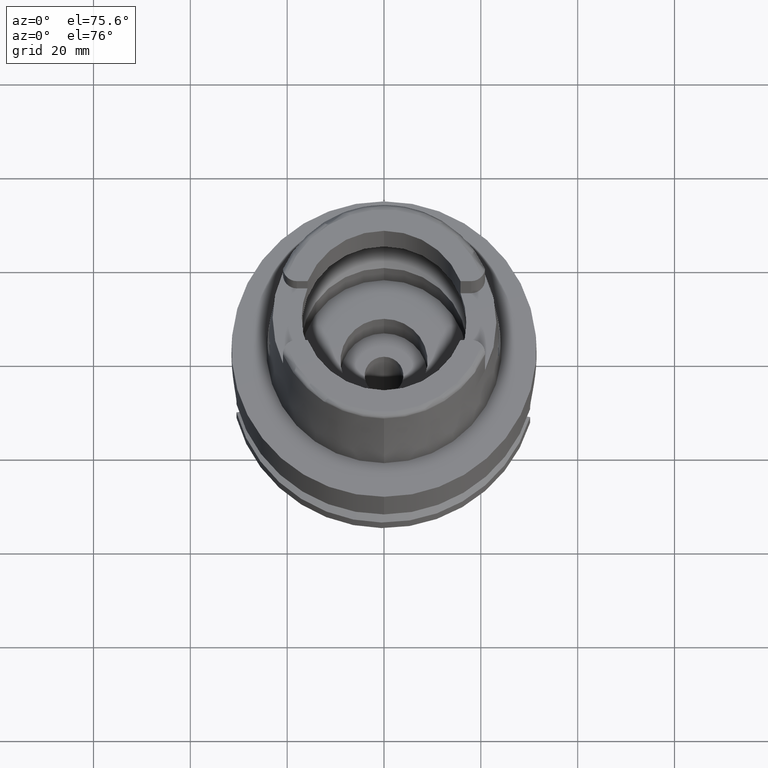
[diagram: clean part render]
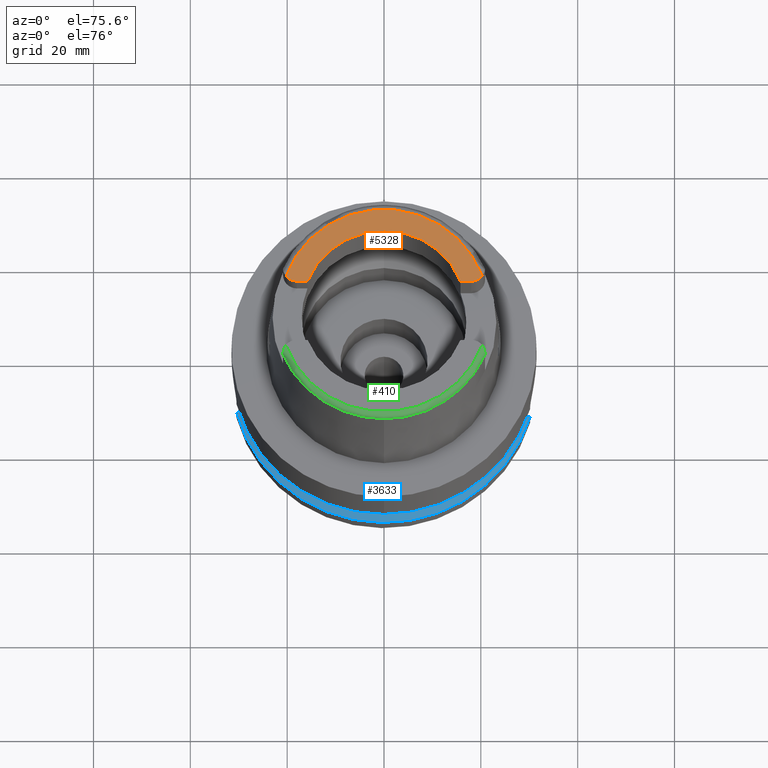
[diagram: same view with three faces highlighted in distinct colors, each labeled with its STEP entity id]
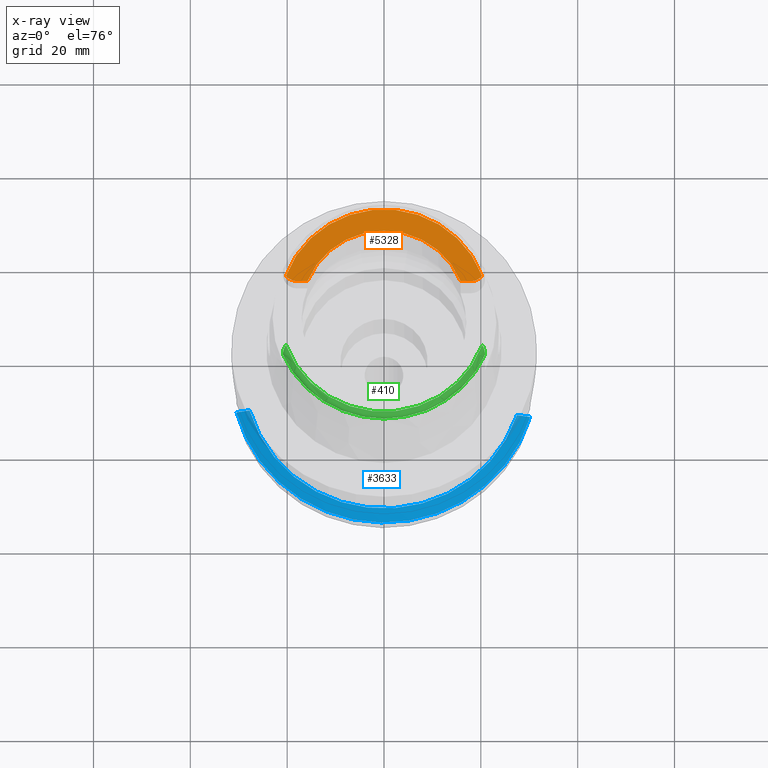
[diagram: x-ray of the same camera — body ghosted, the three highlighted faces saturated]
A machine part, auxiliary view with three faces highlighted in distinct colors.
The next image is the same camera in x-ray (body ghosted, the three faces saturated) — at least one of them is partly hidden behind the body in this view.
Their STEP definitions:

[orange] entity #5328 — the highlighted planar face has unit normal (0, 0, -1).
#3 = VERTEX_POINT ( 'NONE', #1790 ) ;
#40 = VERTEX_POINT ( 'NONE', #3411 ) ;
#74 = ORIENTED_EDGE ( 'NONE', *, *, #4457, .F. ) ;
#148 = ORIENTED_EDGE ( 'NONE', *, *, #4981, .F. ) ;
#178 = VERTEX_POINT ( 'NONE', #322 ) ;
#192 = DIRECTION ( 'NONE',  ( 0.0000000000000000000, -1.000000000000000000, 0.0000000000000000000 ) ) ;
#215 = EDGE_LOOP ( 'NONE', ( #4367, #74, #780, #148, #2707, #4323, #1389 ) ) ;
#253 = DIRECTION ( 'NONE',  ( 1.000000000000000000, 8.644330667353000255E-14, 0.0000000000000000000 ) ) ;
#300 = DIRECTION ( 'NONE',  ( 0.0000000000000000000, 0.0000000000000000000, -1.000000000000000000 ) ) ;
#322 = CARTESIAN_POINT ( 'NONE',  ( 15.80149043602999903, 6.270000000000000462, 32.00000000000000000 ) ) ;
#590 = EDGE_CURVE ( 'NONE', #2093, #2229, #2830, .T. ) ;
#763 = EDGE_CURVE ( 'NONE', #2117, #2229, #1498, .T. ) ;
#777 = VECTOR ( 'NONE', #253, 1000.000000000000000 ) ;
#780 = ORIENTED_EDGE ( 'NONE', *, *, #3675, .T. ) ;
#905 = DIRECTION ( 'NONE',  ( 0.7912216523763718756, -0.6115294733786784676, 0.0000000000000000000 ) ) ;
#1033 = AXIS2_PLACEMENT_3D ( 'NONE', #3031, #4747, #905 ) ;
#1305 = CIRCLE ( 'NONE', #1033, 2.880000000000003446 ) ;
#1326 = DIRECTION ( 'NONE',  ( 0.0009289215035771249650, 0.9999995685523269673, 0.0000000000000000000 ) ) ;
#1389 = ORIENTED_EDGE ( 'NONE', *, *, #763, .T. ) ;
#1498 = LINE ( 'NONE', #2778, #777 ) ;
#1517 = DIRECTION ( 'NONE',  ( 1.000000000000000000, -8.806665515566000284E-14, 0.0000000000000000000 ) ) ;
#1572 = CARTESIAN_POINT ( 'NONE',  ( 15.80149043602999903, 6.270000000000000462, 32.00000000000000000 ) ) ;
#1790 = CARTESIAN_POINT ( 'NONE',  ( 17.98999999999999844, 6.270000000000000462, 32.00000000000000000 ) ) ;
#2025 = AXIS2_PLACEMENT_3D ( 'NONE', #2552, #5207, #2979 ) ;
#2093 = VERTEX_POINT ( 'NONE', #3420 ) ;
#2117 = VERTEX_POINT ( 'NONE', #3029 ) ;
#2191 = DIRECTION ( 'NONE',  ( 0.0000000000000000000, 0.0000000000000000000, -1.000000000000000000 ) ) ;
#2229 = VERTEX_POINT ( 'NONE', #2251 ) ;
#2232 = AXIS2_PLACEMENT_3D ( 'NONE', #5430, #3680, #192 ) ;
#2233 = EDGE_CURVE ( 'NONE', #40, #3376, #5194, .T. ) ;
#2251 = CARTESIAN_POINT ( 'NONE',  ( -15.80149043602999903, 6.270000000000000462, 32.00000000000000000 ) ) ;
#2349 = FACE_OUTER_BOUND ( 'NONE', #215, .T. ) ;
#2401 = EDGE_CURVE ( 'NONE', #2117, #40, #3212, .T. ) ;
#2500 = CARTESIAN_POINT ( 'NONE',  ( 20.26871835884000106, 7.388795116668999796, 32.00000000000000000 ) ) ;
#2552 = CARTESIAN_POINT ( 'NONE',  ( 0.0000000000000000000, 0.0000000000000000000, 32.00000000000000000 ) ) ;
#2634 = AXIS2_PLACEMENT_3D ( 'NONE', #4843, #3072, #3491 ) ;
#2707 = ORIENTED_EDGE ( 'NONE', *, *, #2233, .F. ) ;
#2759 = AXIS2_PLACEMENT_3D ( 'NONE', #4413, #2191, #1326 ) ;
#2778 = CARTESIAN_POINT ( 'NONE',  ( -17.98999999999999844, 6.270000000000000462, 32.00000000000000000 ) ) ;
#2818 = AXIS2_PLACEMENT_3D ( 'NONE', #5425, #300, #4520 ) ;
#2830 = CIRCLE ( 'NONE', #2025, 17.00000000000000000 ) ;
#2979 = DIRECTION ( 'NONE',  ( 0.0000000000000000000, 1.000000000000000000, 0.0000000000000000000 ) ) ;
#3029 = CARTESIAN_POINT ( 'NONE',  ( -17.98999999999999844, 6.270000000000000462, 32.00000000000000000 ) ) ;
#3031 = CARTESIAN_POINT ( 'NONE',  ( 17.98999999999999844, 9.150000000000000355, 32.00000000000000000 ) ) ;
#3072 = DIRECTION ( 'NONE',  ( 0.0000000000000000000, 0.0000000000000000000, 1.000000000000000000 ) ) ;
#3212 = CIRCLE ( 'NONE', #2232, 2.880000000000000782 ) ;
#3376 = VERTEX_POINT ( 'NONE', #2500 ) ;
#3411 = CARTESIAN_POINT ( 'NONE',  ( -20.26871835884000106, 7.388795116669998997, 32.00000000000000000 ) ) ;
#3420 = CARTESIAN_POINT ( 'NONE',  ( 0.0000000000000000000, 17.00000000000000000, 32.00000000000000000 ) ) ;
#3491 = DIRECTION ( 'NONE',  ( 0.9294994374136111848, 0.3688235294118045182, 0.0000000000000000000 ) ) ;
#3628 = CIRCLE ( 'NONE', #2634, 17.00000000000000000 ) ;
#3642 = PLANE ( 'NONE',  #2818 ) ;
#3675 = EDGE_CURVE ( 'NONE', #178, #3, #4098, .T. ) ;
#3680 = DIRECTION ( 'NONE',  ( 0.0000000000000000000, 0.0000000000000000000, -1.000000000000000000 ) ) ;
#4098 = LINE ( 'NONE', #1572, #5470 ) ;
#4323 = ORIENTED_EDGE ( 'NONE', *, *, #2401, .F. ) ;
#4367 = ORIENTED_EDGE ( 'NONE', *, *, #590, .F. ) ;
#4413 = CARTESIAN_POINT ( 'NONE',  ( 0.0000000000000000000, 0.0000000000000000000, 32.00000000000000000 ) ) ;
#4457 = EDGE_CURVE ( 'NONE', #178, #2093, #3628, .T. ) ;
#4520 = DIRECTION ( 'NONE',  ( 0.0000000000000000000, -1.000000000000000000, 0.0000000000000000000 ) ) ;
#4747 = DIRECTION ( 'NONE',  ( 0.0000000000000000000, 0.0000000000000000000, -1.000000000000000000 ) ) ;
#4843 = CARTESIAN_POINT ( 'NONE',  ( 0.0000000000000000000, 0.0000000000000000000, 32.00000000000000000 ) ) ;
#4981 = EDGE_CURVE ( 'NONE', #3376, #3, #1305, .T. ) ;
#5194 = CIRCLE ( 'NONE', #2759, 21.57348458609000375 ) ;
#5207 = DIRECTION ( 'NONE',  ( 0.0000000000000000000, 0.0000000000000000000, 1.000000000000000000 ) ) ;
#5328 = ADVANCED_FACE ( 'NONE', ( #2349 ), #3642, .F. ) ;
#5425 = CARTESIAN_POINT ( 'NONE',  ( 0.0000000000000000000, 0.0000000000000000000, 32.00000000000000000 ) ) ;
#5430 = CARTESIAN_POINT ( 'NONE',  ( -17.98999999999999844, 9.150000000000000355, 32.00000000000000000 ) ) ;
#5470 = VECTOR ( 'NONE', #1517, 1000.000000000000000 ) ;

[blue] entity #3633 — the highlighted conical surface has half-angle 60 deg.
#10 = CARTESIAN_POINT ( 'NONE',  ( 30.18691769625000276, -9.000000000000000000, -21.37749907476000288 ) ) ;
#37 = CARTESIAN_POINT ( 'NONE',  ( 29.87630236433000164, -9.000000693249997852, -21.20564649714999916 ) ) ;
#92 = DIRECTION ( 'NONE',  ( 0.0000000000000000000, 0.0000000000000000000, -1.000000000000000000 ) ) ;
#175 = VERTEX_POINT ( 'NONE', #5016 ) ;
#363 = CARTESIAN_POINT ( 'NONE',  ( 27.75565591403999832, -9.000000213814999483, -20.03701499227999960 ) ) ;
#380 = VERTEX_POINT ( 'NONE', #2957 ) ;
#461 = CARTESIAN_POINT ( 'NONE',  ( 0.0000000000000000000, 0.0000000000000000000, -21.37749907476000288 ) ) ;
#621 = CARTESIAN_POINT ( 'NONE',  ( -29.55118338060999861, -7.999999980957999135, -20.86631295881000270 ) ) ;
#893 = CARTESIAN_POINT ( 'NONE',  ( 27.46035049526000194, -9.000000213814999483, -19.87500000000000000 ) ) ;
#906 = ORIENTED_EDGE ( 'NONE', *, *, #3853, .F. ) ;
#936 = EDGE_CURVE ( 'NONE', #4592, #380, #3739, .T. ) ;
#1120 = CARTESIAN_POINT ( 'NONE',  ( -27.76816544269999909, -8.000000000000000000, -19.87500000000000000 ) ) ;
#1147 = EDGE_LOOP ( 'NONE', ( #1847, #4418, #906, #3458 ) ) ;
#1249 = CIRCLE ( 'NONE', #3487, 31.49999999999999645 ) ;
#1422 = DIRECTION ( 'NONE',  ( 0.9583148474999051425, -0.2857142857143015191, 0.0000000000000000000 ) ) ;
#1439 = CARTESIAN_POINT ( 'NONE',  ( -28.06106257845999963, -7.999999497277999083, -20.03749071728999809 ) ) ;
#1585 = AXIS2_PLACEMENT_3D ( 'NONE', #3955, #92, #1835 ) ;
#1824 = CARTESIAN_POINT ( 'NONE',  ( -30.46719550015999900, -7.999999897168999397, -21.37749814126999937 ) ) ;
#1835 = DIRECTION ( 'NONE',  ( 0.0000000000000000000, -1.000000000000000000, 0.0000000000000000000 ) ) ;
#1847 = ORIENTED_EDGE ( 'NONE', *, *, #936, .F. ) ;
#2031 = CARTESIAN_POINT ( 'NONE',  ( -30.46719550015999900, -7.999999897168999397, -21.37749814126999937 ) ) ;
#2408 = CARTESIAN_POINT ( 'NONE',  ( -28.65151656516000145, -8.000000220892998115, -20.36546629151999710 ) ) ;
#2609 = DIRECTION ( 'NONE',  ( 0.0000000000000000000, 0.0000000000000000000, -1.000000000000000000 ) ) ;
#2736 = B_SPLINE_CURVE_WITH_KNOTS ( 'NONE', 3,
 ( #893, #363, #5050, #4212, #37, #10 ),
 .UNSPECIFIED., .F., .F.,
 ( 4, 1, 1, 4 ),
 ( 0.0000000000000000000, 0.3333333333333000081, 0.6666666666667000474, 1.000000000000000000 ),
 .UNSPECIFIED. ) ;
#2810 = EDGE_CURVE ( 'NONE', #175, #4592, #1249, .T. ) ;
#2824 = FACE_OUTER_BOUND ( 'NONE', #1147, .T. ) ;
#2957 = CARTESIAN_POINT ( 'NONE',  ( -27.76816544269999909, -8.000000000000000000, -19.87500000000000000 ) ) ;
#3424 = CARTESIAN_POINT ( 'NONE',  ( 27.46035049526000194, -9.000000213814999483, -19.87500000000000000 ) ) ;
#3458 = ORIENTED_EDGE ( 'NONE', *, *, #5509, .T. ) ;
#3487 = AXIS2_PLACEMENT_3D ( 'NONE', #461, #2609, #1422 ) ;
#3518 = VERTEX_POINT ( 'NONE', #3424 ) ;
#3532 = CARTESIAN_POINT ( 'NONE',  ( -30.16030063096999925, -7.999999897168999397, -21.20612177635999984 ) ) ;
#3544 = CIRCLE ( 'NONE', #1585, 28.89759526419000224 ) ;
#3633 = ADVANCED_FACE ( 'NONE', ( #2824 ), #4207, .T. ) ;
#3739 = B_SPLINE_CURVE_WITH_KNOTS ( 'NONE', 3,
 ( #1824, #3532, #621, #2408, #1439, #1120 ),
 .UNSPECIFIED., .F., .F.,
 ( 4, 1, 1, 4 ),
 ( 0.0000000000000000000, 0.3333333333333000081, 0.6666666666667000474, 1.000000000000000000 ),
 .UNSPECIFIED. ) ;
#3761 = DIRECTION ( 'NONE',  ( 0.0000000000000000000, -1.000000000000000000, 0.0000000000000000000 ) ) ;
#3853 = EDGE_CURVE ( 'NONE', #3518, #175, #2736, .T. ) ;
#3955 = CARTESIAN_POINT ( 'NONE',  ( 0.0000000000000000000, 0.0000000000000000000, -19.87500000000000000 ) ) ;
#4124 = CARTESIAN_POINT ( 'NONE',  ( 0.0000000000000000000, 0.0000000000000000000, -20.62624953738000144 ) ) ;
#4207 = CONICAL_SURFACE ( 'NONE', #5291, 30.19879763209999979, 1.047197551196400456 ) ;
#4212 = CARTESIAN_POINT ( 'NONE',  ( 29.26019866576999817, -8.999999704991999749, -20.86519052543000186 ) ) ;
#4418 = ORIENTED_EDGE ( 'NONE', *, *, #2810, .F. ) ;
#4592 = VERTEX_POINT ( 'NONE', #2031 ) ;
#4905 = DIRECTION ( 'NONE',  ( 0.0000000000000000000, 0.0000000000000000000, -1.000000000000000000 ) ) ;
#5016 = CARTESIAN_POINT ( 'NONE',  ( 30.18691769625000276, -9.000000000000000000, -21.37749907476000288 ) ) ;
#5050 = CARTESIAN_POINT ( 'NONE',  ( 28.35135138144000067, -8.999999992652998770, -20.36433990823999807 ) ) ;
#5291 = AXIS2_PLACEMENT_3D ( 'NONE', #4124, #4905, #3761 ) ;
#5509 = EDGE_CURVE ( 'NONE', #3518, #380, #3544, .T. ) ;

[green] entity #410 — the highlighted toroidal blend (fillet) surface has major radius 21.5735 mm and minor (blend) radius 1.2 mm.
#12 = CARTESIAN_POINT ( 'NONE',  ( -20.86641157814788272, -9.005318541055578052, 31.13308999259930943 ) ) ;
#81 = VERTEX_POINT ( 'NONE', #2991 ) ;
#95 = CARTESIAN_POINT ( 'NONE',  ( -20.83085267127646745, -8.676402104746909316, 31.47543881077705663 ) ) ;
#231 = VERTEX_POINT ( 'NONE', #2903 ) ;
#238 = DIRECTION ( 'NONE',  ( 0.0000000000000000000, 0.0000000000000000000, -1.000000000000000000 ) ) ;
#340 = B_SPLINE_CURVE_WITH_KNOTS ( 'NONE', 3,
 ( #2068, #857, #3326, #3783, #5070, #3430, #1224, #4232, #381, #2956, #3012, #3808, #435, #834, #5529, #1677, #5154, #3380, #5098, #1252, #4255, #407, #2120, #3841, #5558, #1702, #2557, #3869, #3547, #2611, #4370 ),
 .UNSPECIFIED., .F., .F.,
 ( 4, 2, 2, 1, 2, 2, 1, 1, 2, 2, 2, 2, 2, 2, 2, 2, 4 ),
 ( 0.0000000000000000000, 0.1250000000000240086, 0.1875000000000344724, 0.2187500000000390243, 0.2343750000000419387, 0.2500000000000448530, 0.3125000000000497935, 0.3437500000000537348, 0.3593750000000561773, 0.3750000000000586198, 0.4375000000000618394, 0.4687500000000612843, 0.5000000000000607292, 0.6250000000000481837, 0.6875000000000454081, 0.7500000000000386358, 1.000000000000000000 ),
 .UNSPECIFIED. ) ;
#381 = CARTESIAN_POINT ( 'NONE',  ( 20.62685984575636411, -7.991716533909556830, 31.86794387910001092 ) ) ;
#405 = DIRECTION ( 'NONE',  ( 0.0000000000000000000, 0.0000000000000000000, -1.000000000000000000 ) ) ;
#407 = CARTESIAN_POINT ( 'NONE',  ( 20.81375482798167553, -8.583266235086949081, 31.54535521395653674 ) ) ;
#410 = ADVANCED_FACE ( 'NONE', ( #2558 ), #4719, .T. ) ;
#435 = CARTESIAN_POINT ( 'NONE',  ( 20.72465704015353438, -8.245897163663585161, 31.75189467420584677 ) ) ;
#445 = CARTESIAN_POINT ( 'NONE',  ( -20.75994970722248922, -8.361381667989899569, 31.68814887346496079 ) ) ;
#471 = CARTESIAN_POINT ( 'NONE',  ( -20.26871835884000106, -7.388795116668999796, 32.00000000000000000 ) ) ;
#533 = CARTESIAN_POINT ( 'NONE',  ( -20.84166703527356290, -8.745524356842608427, 31.41904928948017428 ) ) ;
#627 = AXIS2_PLACEMENT_3D ( 'NONE', #4469, #710, #2332 ) ;
#710 = DIRECTION ( 'NONE',  ( 0.0000000000000000000, 0.0000000000000000000, -1.000000000000000000 ) ) ;
#834 = CARTESIAN_POINT ( 'NONE',  ( 20.73723606352406890, -8.285543439580742131, 31.73060712947484774 ) ) ;
#836 = CARTESIAN_POINT ( 'NONE',  ( -20.26871835884000106, -7.388795116668999796, 32.00000000000000000 ) ) ;
#857 = CARTESIAN_POINT ( 'NONE',  ( 20.34071443572491944, -7.481946562992295213, 32.00000000000000000 ) ) ;
#869 = CARTESIAN_POINT ( 'NONE',  ( -20.86974104081000192, -9.111384059232001675, 30.85992588095000144 ) ) ;
#895 = CARTESIAN_POINT ( 'NONE',  ( -20.86965348838224443, -9.104850440964327163, 30.91381375025958889 ) ) ;
#946 = DIRECTION ( 'NONE',  ( -0.0009289215035770252184, -0.9999995685523270783, 0.0000000000000000000 ) ) ;
#954 = CARTESIAN_POINT ( 'NONE',  ( -20.86838898358971051, -9.052917677831123555, 31.05033937024936819 ) ) ;
#1224 = CARTESIAN_POINT ( 'NONE',  ( 20.59432765129713871, -7.919708700004194135, 31.89547898516000046 ) ) ;
#1252 = CARTESIAN_POINT ( 'NONE',  ( 20.79974064876972051, -8.517354747313108376, 31.59103461277577196 ) ) ;
#1297 = AXIS2_PLACEMENT_3D ( 'NONE', #5447, #238, #3298 ) ;
#1348 = CARTESIAN_POINT ( 'NONE',  ( -20.82150484000245427, -8.623281151183412874, 31.51616356491670246 ) ) ;
#1401 = CARTESIAN_POINT ( 'NONE',  ( -20.67731360277655028, -8.113581347944997191, 31.81637179748257438 ) ) ;
#1445 = EDGE_CURVE ( 'NONE', #81, #5420, #2982, .T. ) ;
#1558 = CARTESIAN_POINT ( 'NONE',  ( 20.86974110885000044, -9.111383541376000039, 30.85992743120000270 ) ) ;
#1664 = CIRCLE ( 'NONE', #1297, 22.77198729362000407 ) ;
#1677 = CARTESIAN_POINT ( 'NONE',  ( 20.74987782579768236, -8.326824062746508659, 31.70785822910083240 ) ) ;
#1702 = CARTESIAN_POINT ( 'NONE',  ( 20.85615591175827177, -8.866726534124589776, 31.30483935949918717 ) ) ;
#1733 = CARTESIAN_POINT ( 'NONE',  ( -20.78413878274976767, -8.451643714255617112, 31.63373462418671167 ) ) ;
#1817 = CARTESIAN_POINT ( 'NONE',  ( -20.75714607800856371, -8.351569432899749401, 31.69381847814927511 ) ) ;
#2066 = CARTESIAN_POINT ( 'NONE',  ( 0.0000000000000000000, 0.0000000000000000000, 30.85992712280000205 ) ) ;
#2068 = CARTESIAN_POINT ( 'NONE',  ( 20.26871835884000106, -7.388795116669998997, 32.00000000000000000 ) ) ;
#2120 = CARTESIAN_POINT ( 'NONE',  ( 20.83225153445821221, -8.678765412615183195, 31.47569035712380270 ) ) ;
#2155 = CARTESIAN_POINT ( 'NONE',  ( -20.65060741131888378, -8.047379156773619258, 31.84515668999303983 ) ) ;
#2332 = DIRECTION ( 'NONE',  ( -0.0009289215035771249650, -0.9999995685523269673, 0.0000000000000000000 ) ) ;
#2470 = EDGE_CURVE ( 'NONE', #231, #5420, #3125, .T. ) ;
#2514 = ORIENTED_EDGE ( 'NONE', *, *, #2470, .T. ) ;
#2532 = ORIENTED_EDGE ( 'NONE', *, *, #4139, .F. ) ;
#2557 = CARTESIAN_POINT ( 'NONE',  ( 20.86085688020053297, -8.919187651150961571, 31.24701870761812472 ) ) ;
#2558 = FACE_OUTER_BOUND ( 'NONE', #3590, .T. ) ;
#2568 = CARTESIAN_POINT ( 'NONE',  ( -20.86788996676954966, -9.038529687213639363, 31.07784766325286796 ) ) ;
#2595 = CARTESIAN_POINT ( 'NONE',  ( -20.66142640513989548, -8.073856197804600399, 31.83379703494235002 ) ) ;
#2611 = CARTESIAN_POINT ( 'NONE',  ( 20.86956584352820698, -9.098314597939491932, 30.96771735029232175 ) ) ;
#2617 = CARTESIAN_POINT ( 'NONE',  ( -20.80937217401403672, -8.560635797643408651, 31.56186672335162413 ) ) ;
#2647 = CARTESIAN_POINT ( 'NONE',  ( -20.85688775111095339, -8.868785507414607139, 31.30497910384954352 ) ) ;
#2794 = EDGE_CURVE ( 'NONE', #3658, #81, #4655, .T. ) ;
#2903 = CARTESIAN_POINT ( 'NONE',  ( 20.26871835884000106, -7.388795116669998997, 32.00000000000000000 ) ) ;
#2956 = CARTESIAN_POINT ( 'NONE',  ( 20.63379768415070359, -8.007660114403073237, 31.86156217488834841 ) ) ;
#2982 = B_SPLINE_CURVE_WITH_KNOTS ( 'NONE', 3,
 ( #869, #895, #3526, #954, #2568, #12, #3901, #4352, #2647, #4377, #533, #3958, #95, #3053, #1348, #2617, #4711, #1733, #3468, #4295, #445, #1817, #5248, #5163, #1401, #2595, #2155, #3877, #3022, #4322, #471 ),
 .UNSPECIFIED., .F., .F.,
 ( 4, 2, 2, 2, 2, 2, 2, 2, 2, 1, 2, 2, 1, 1, 2, 2, 4 ),
 ( 0.0000000000000000000, 0.1249999999999885647, 0.1874999999999821254, 0.2499999999999756861, 0.3749999999999659162, 0.4374999999999617528, 0.4687499999999639178, 0.4999999999999661382, 0.5624999999999662492, 0.5937499999999639178, 0.6093749999999639178, 0.6249999999999639178, 0.6874999999999774625, 0.7187499999999849010, 0.7343749999999864553, 0.7499999999999880096, 1.000000000000000000 ),
 .UNSPECIFIED. ) ;
#2991 = CARTESIAN_POINT ( 'NONE',  ( -20.86974104081000192, -9.111384059232001675, 30.85992588095000144 ) ) ;
#3012 = CARTESIAN_POINT ( 'NONE',  ( 20.66197443561299352, -8.073775879024509550, 31.83446689724664225 ) ) ;
#3022 = CARTESIAN_POINT ( 'NONE',  ( -20.53972291089755942, -7.786909450996517990, 31.95204353005333431 ) ) ;
#3053 = CARTESIAN_POINT ( 'NONE',  ( -20.82456653762341503, -8.640126084141943608, 31.50348293807121181 ) ) ;
#3125 = CIRCLE ( 'NONE', #627, 21.57348458609000375 ) ;
#3131 = AXIS2_PLACEMENT_3D ( 'NONE', #2066, #405, #5503 ) ;
#3224 = CARTESIAN_POINT ( 'NONE',  ( 0.0000000000000000000, -22.77198729362000051, 30.85992712280000205 ) ) ;
#3298 = DIRECTION ( 'NONE',  ( 0.9164655183265837390, -0.4001136759951928745, 0.0000000000000000000 ) ) ;
#3326 = CARTESIAN_POINT ( 'NONE',  ( 20.40845000213099780, -7.581403032661522268, 31.98801192661332493 ) ) ;
#3380 = CARTESIAN_POINT ( 'NONE',  ( 20.77880112134620916, -8.429555299392561096, 31.64793834507297632 ) ) ;
#3430 = CARTESIAN_POINT ( 'NONE',  ( 20.57376960714526248, -7.877400896960891075, 31.91008944960001159 ) ) ;
#3468 = CARTESIAN_POINT ( 'NONE',  ( -20.77564881624547866, -8.418209057436365939, 31.65456868939335422 ) ) ;
#3526 = CARTESIAN_POINT ( 'NONE',  ( -20.86946551998453359, -9.089412940873325297, 30.96815310624813122 ) ) ;
#3547 = CARTESIAN_POINT ( 'NONE',  ( 20.86948295280514287, -9.049582967174934822, 31.07730016127010231 ) ) ;
#3590 = EDGE_LOOP ( 'NONE', ( #4406, #2532, #4110, #2514, #4918 ) ) ;
#3658 = VERTEX_POINT ( 'NONE', #3224 ) ;
#3783 = CARTESIAN_POINT ( 'NONE',  ( 20.50177061371321940, -7.739625014836690298, 31.95204770645333880 ) ) ;
#3808 = CARTESIAN_POINT ( 'NONE',  ( 20.69304082471254347, -8.153260475424982445, 31.79885694675599339 ) ) ;
#3841 = CARTESIAN_POINT ( 'NONE',  ( 20.84238961403550050, -8.747506431811181926, 31.41926221618599513 ) ) ;
#3869 = CARTESIAN_POINT ( 'NONE',  ( 20.86273134120599337, -8.944430681395916238, 31.21651978984913711 ) ) ;
#3877 = CARTESIAN_POINT ( 'NONE',  ( -20.64567876535225111, -8.035539125657027881, 31.85013603141667460 ) ) ;
#3901 = CARTESIAN_POINT ( 'NONE',  ( -20.86550018686548924, -8.987554232347381600, 31.15942174282644928 ) ) ;
#3958 = CARTESIAN_POINT ( 'NONE',  ( -20.83373243000236030, -8.694053486638807726, 31.46137370902877350 ) ) ;
#4110 = ORIENTED_EDGE ( 'NONE', *, *, #4283, .F. ) ;
#4139 = EDGE_CURVE ( 'NONE', #4524, #3658, #1664, .T. ) ;
#4232 = CARTESIAN_POINT ( 'NONE',  ( 20.61397186676914828, -7.962809165978426584, 31.87918269790000636 ) ) ;
#4255 = CARTESIAN_POINT ( 'NONE',  ( 20.80906390698531894, -8.560287173762679558, 31.56163472336617914 ) ) ;
#4256 = DIRECTION ( 'NONE',  ( 0.0000000000000000000, 0.0000000000000000000, -1.000000000000000000 ) ) ;
#4283 = EDGE_CURVE ( 'NONE', #231, #4524, #340, .T. ) ;
#4295 = CARTESIAN_POINT ( 'NONE',  ( -20.76634170198365581, -8.384188660340702981, 31.67479750039675679 ) ) ;
#4322 = CARTESIAN_POINT ( 'NONE',  ( -20.41273442218498602, -7.575128944499017081, 32.00000000000000711 ) ) ;
#4352 = CARTESIAN_POINT ( 'NONE',  ( -20.86124533285208216, -8.921286102429244025, 31.24716932521208790 ) ) ;
#4370 = CARTESIAN_POINT ( 'NONE',  ( 20.86974110885000044, -9.111383541376000039, 30.85992743120000270 ) ) ;
#4377 = CARTESIAN_POINT ( 'NONE',  ( -20.84601876220443373, -8.777859472760866311, 31.39066085737619716 ) ) ;
#4406 = ORIENTED_EDGE ( 'NONE', *, *, #2794, .F. ) ;
#4449 = AXIS2_PLACEMENT_3D ( 'NONE', #5126, #4256, #946 ) ;
#4469 = CARTESIAN_POINT ( 'NONE',  ( 0.0000000000000000000, 0.0000000000000000000, 32.00000000000000000 ) ) ;
#4524 = VERTEX_POINT ( 'NONE', #1558 ) ;
#4655 = CIRCLE ( 'NONE', #3131, 22.77198729362000051 ) ;
#4711 = CARTESIAN_POINT ( 'NONE',  ( -20.80009642274020720, -8.517694495261258325, 31.59125948816911844 ) ) ;
#4719 = TOROIDAL_SURFACE ( 'NONE', #4449, 21.57348458609000019, 1.199999999999999956 ) ;
#4918 = ORIENTED_EDGE ( 'NONE', *, *, #1445, .F. ) ;
#5070 = CARTESIAN_POINT ( 'NONE',  ( 20.53149608650711144, -7.793868339089788932, 31.93706261472001273 ) ) ;
#5098 = CARTESIAN_POINT ( 'NONE',  ( 20.79476083473790737, -8.495607361606111851, 31.60546369369172126 ) ) ;
#5126 = CARTESIAN_POINT ( 'NONE',  ( 0.0000000000000000000, 0.0000000000000000000, 30.80000000000000071 ) ) ;
#5154 = CARTESIAN_POINT ( 'NONE',  ( 20.76680117014776528, -8.384439386127867877, 31.67517132417170700 ) ) ;
#5163 = CARTESIAN_POINT ( 'NONE',  ( -20.71201719393160801, -8.206295867859253690, 31.77301262589021746 ) ) ;
#5248 = CARTESIAN_POINT ( 'NONE',  ( -20.73778571411568805, -8.285653848511426389, 31.73121856306330457 ) ) ;
#5420 = VERTEX_POINT ( 'NONE', #836 ) ;
#5447 = CARTESIAN_POINT ( 'NONE',  ( 0.0000000000000000000, 0.0000000000000000000, 30.85992712280000205 ) ) ;
#5503 = DIRECTION ( 'NONE',  ( -0.0009289215035765249675, -0.9999995685523268563, 0.0000000000000000000 ) ) ;
#5529 = CARTESIAN_POINT ( 'NONE',  ( 20.74540870972020912, -8.311958249263716070, 31.71615746487747955 ) ) ;
#5558 = CARTESIAN_POINT ( 'NONE',  ( 20.85326075376417876, -8.838439810587921386, 31.33357562157181064 ) ) ;